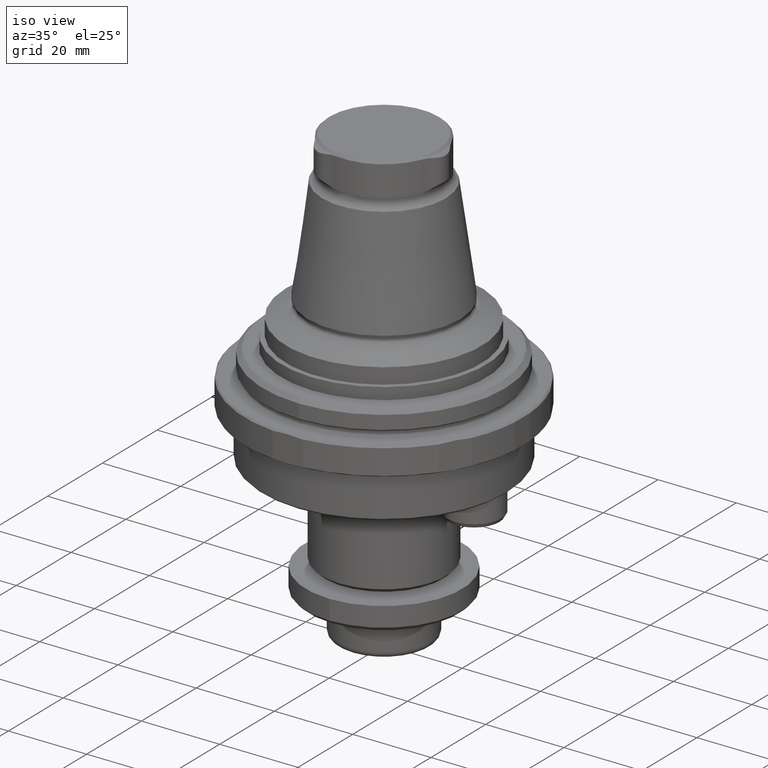
[diagram: clean part render]
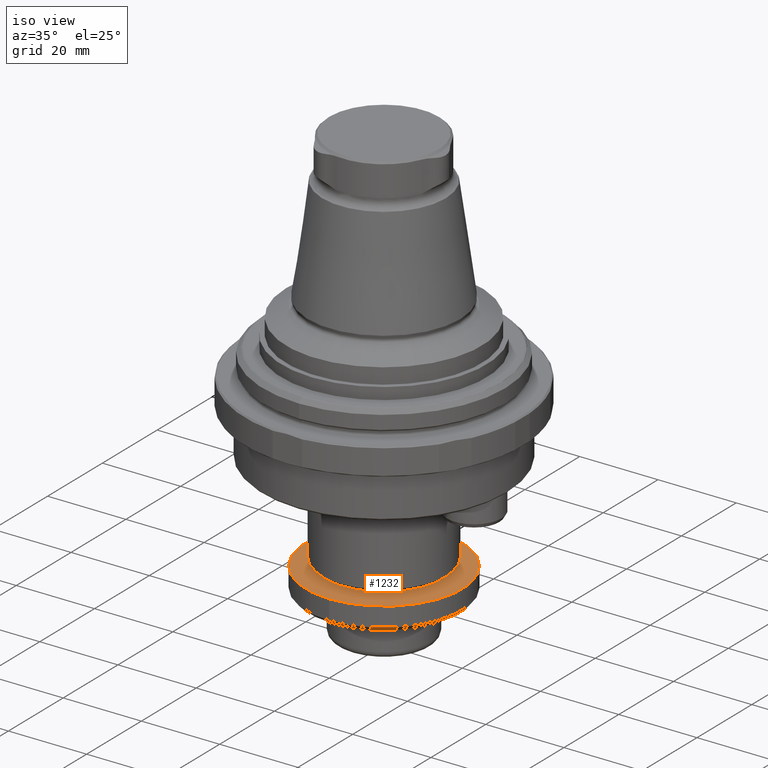
[diagram: same view with one face highlighted and labeled with its STEP entity id]
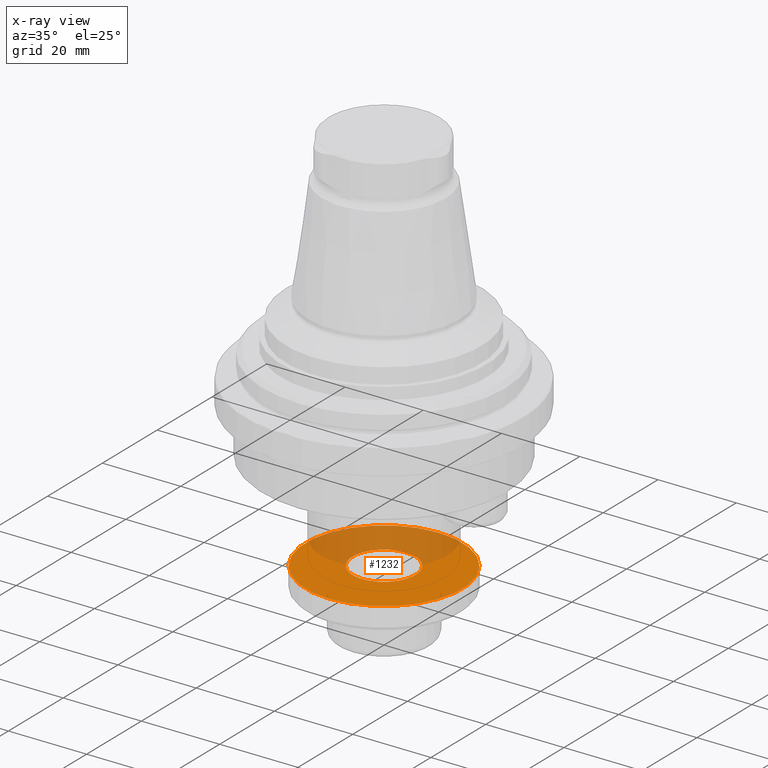
[diagram: x-ray of the same camera — body ghosted, the highlighted face saturated]
A machine part, iso view. The second image highlights one B-rep face of the part: STEP entity #1232.
The next image is the same camera in x-ray: the body ghosted, the highlighted face saturated — about 37% of this face is hidden behind the body in this view.
In plain terms, the highlighted planar face has unit normal (-0, 0, -1).
Its self-contained STEP definition (entity closure, byte-faithful):
#153=PLANE('',#1362);
#250=ORIENTED_EDGE('',*,*,#570,.F.);
#251=ORIENTED_EDGE('',*,*,#569,.F.);
#569=EDGE_CURVE('',#731,#731,#848,.T.);
#570=EDGE_CURVE('',#732,#732,#849,.F.);
#731=VERTEX_POINT('',#1995);
#732=VERTEX_POINT('',#1998);
#848=CIRCLE('',#1361,20.);
#849=CIRCLE('',#1363,8.00000000000016);
#939=EDGE_LOOP('',(#250));
#940=EDGE_LOOP('',(#251));
#1075=FACE_BOUND('',#939,.T.);
#1076=FACE_BOUND('',#940,.T.);
#1232=ADVANCED_FACE('',(#1075,#1076),#153,.F.);
#1361=AXIS2_PLACEMENT_3D('',#1994,#1582,#1583);
#1362=AXIS2_PLACEMENT_3D('',#1996,#1584,#1585);
#1363=AXIS2_PLACEMENT_3D('',#1997,#1586,#1587);
#1582=DIRECTION('',(-2.39050483828487E-32,2.44921270764479E-16,-1.));
#1583=DIRECTION('',(-8.32667268468867E-17,-1.,-2.44921270764479E-16));
#1584=DIRECTION('',(-2.39050483828487E-32,2.44921270764479E-16,-1.));
#1585=DIRECTION('',(-8.32667268468867E-17,-1.,-2.44921270764479E-16));
#1586=DIRECTION('',(-2.39050483828487E-32,2.44921270764479E-16,-1.));
#1587=DIRECTION('',(0.,1.,2.44921270764479E-16));
#1994=CARTESIAN_POINT('',(6.13255012104889E-33,2.77054312651491E-16,-45.));
#1995=CARTESIAN_POINT('',(-1.66533453693773E-15,-20.,-45.));
#1996=CARTESIAN_POINT('',(-7.07767178198537E-16,-8.5,-45.));
#1997=CARTESIAN_POINT('',(3.49163219414263E-33,2.4493482329175E-16,-45.));
#1998=CARTESIAN_POINT('',(3.49163219414263E-33,8.00000000000016,-45.));